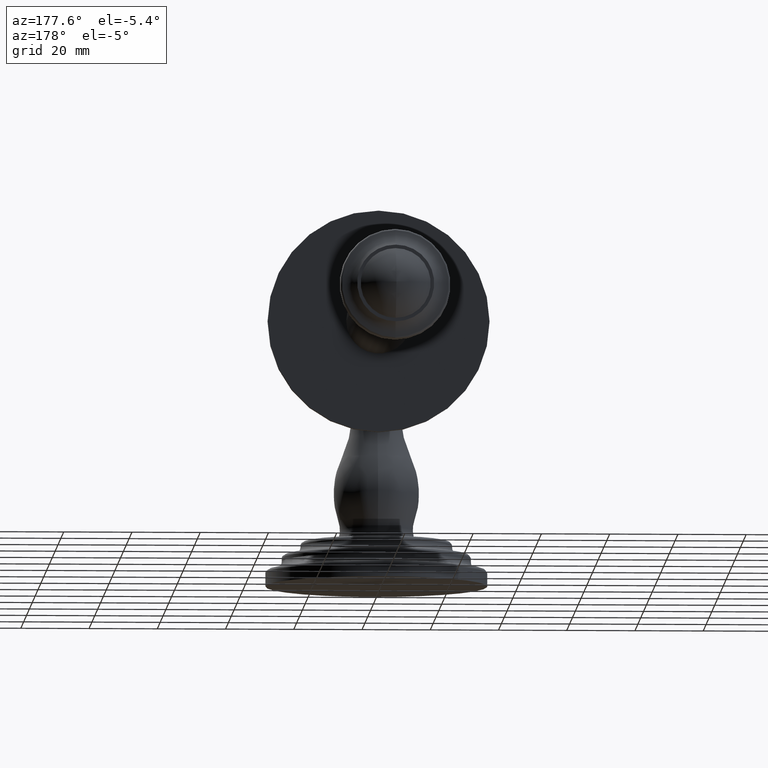
[diagram: clean part render]
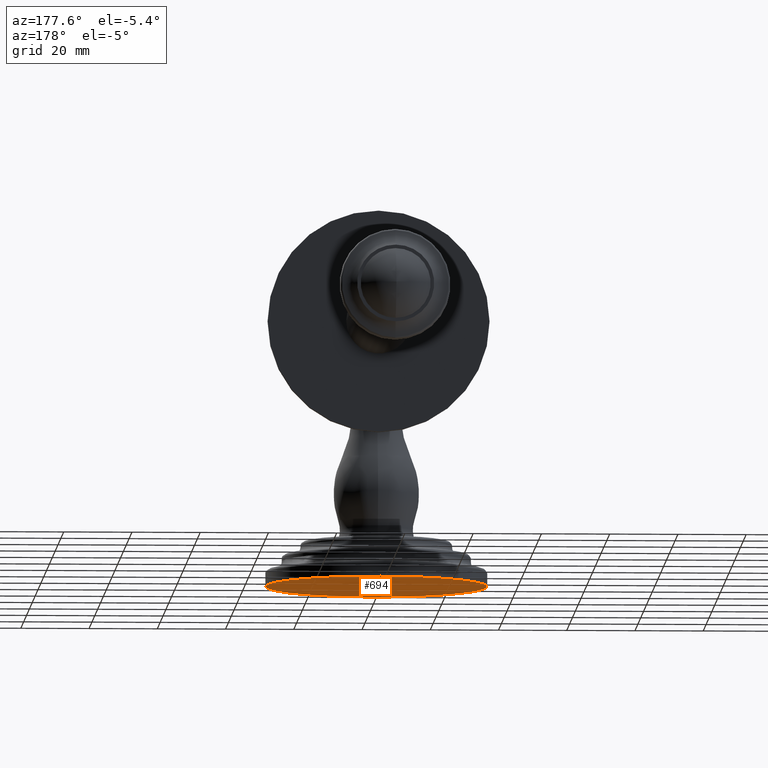
[diagram: same view with one face highlighted and labeled with its STEP entity id]
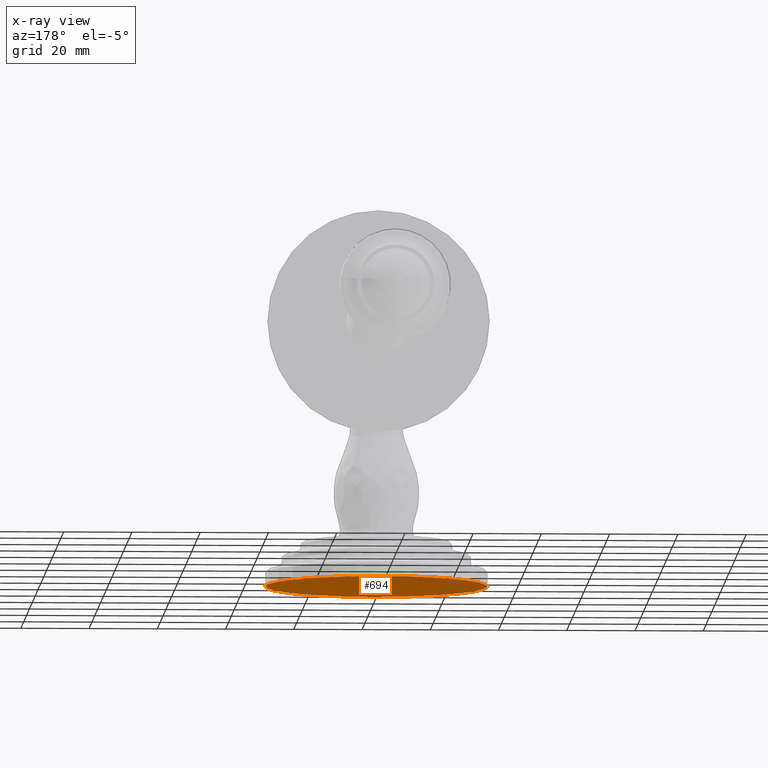
[diagram: x-ray of the same camera — body ghosted, the highlighted face saturated]
A machine part, auxiliary view. The second image highlights one B-rep face of the part: STEP entity #694.
The next image is the same camera in x-ray: the body ghosted, the highlighted face saturated — about 0% of this face is hidden behind the body in this view.
In plain terms, the highlighted planar face has unit normal (0, 0, 1).
Its self-contained STEP definition (entity closure, byte-faithful):
#2=CARTESIAN_POINT('',(0.E0,0.E0,0.E0));
#3=DIRECTION('',(0.E0,0.E0,1.E0));
#4=DIRECTION('',(-1.E0,0.E0,0.E0));
#5=AXIS2_PLACEMENT_3D('',#2,#3,#4);
#12=CARTESIAN_POINT('',(0.E0,0.E0,0.E0));
#13=DIRECTION('',(0.E0,0.E0,-1.E0));
#14=DIRECTION('',(-1.E0,0.E0,0.E0));
#15=AXIS2_PLACEMENT_3D('',#12,#13,#14);
#587=CARTESIAN_POINT('',(-1.28E0,0.E0,0.E0));
#588=CARTESIAN_POINT('',(1.28E0,0.E0,0.E0));
#589=VERTEX_POINT('',#587);
#590=VERTEX_POINT('',#588);
#683=CARTESIAN_POINT('',(0.E0,0.E0,0.E0));
#684=DIRECTION('',(0.E0,0.E0,1.E0));
#685=DIRECTION('',(1.E0,0.E0,0.E0));
#686=AXIS2_PLACEMENT_3D('',#683,#684,#685);
#687=PLANE('',#686);
#689=ORIENTED_EDGE('',*,*,#688,.T.);
#691=ORIENTED_EDGE('',*,*,#690,.F.);
#692=EDGE_LOOP('',(#689,#691));
#693=FACE_OUTER_BOUND('',#692,.F.);
#694=ADVANCED_FACE('',(#693),#687,.F.);
#6=CIRCLE('',#5,1.28E0);
#16=CIRCLE('',#15,1.28E0);
#688=EDGE_CURVE('',#589,#590,#6,.T.);
#690=EDGE_CURVE('',#589,#590,#16,.T.);